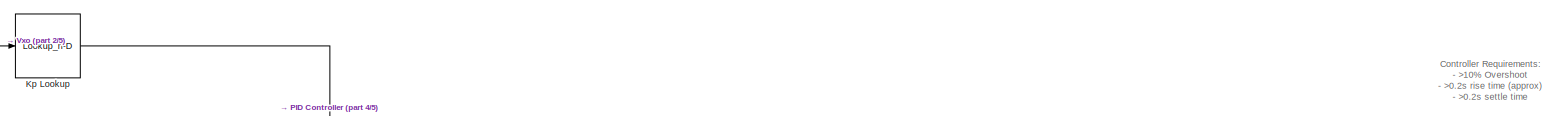
[diagram: root canvas - part 1/5, top center region]
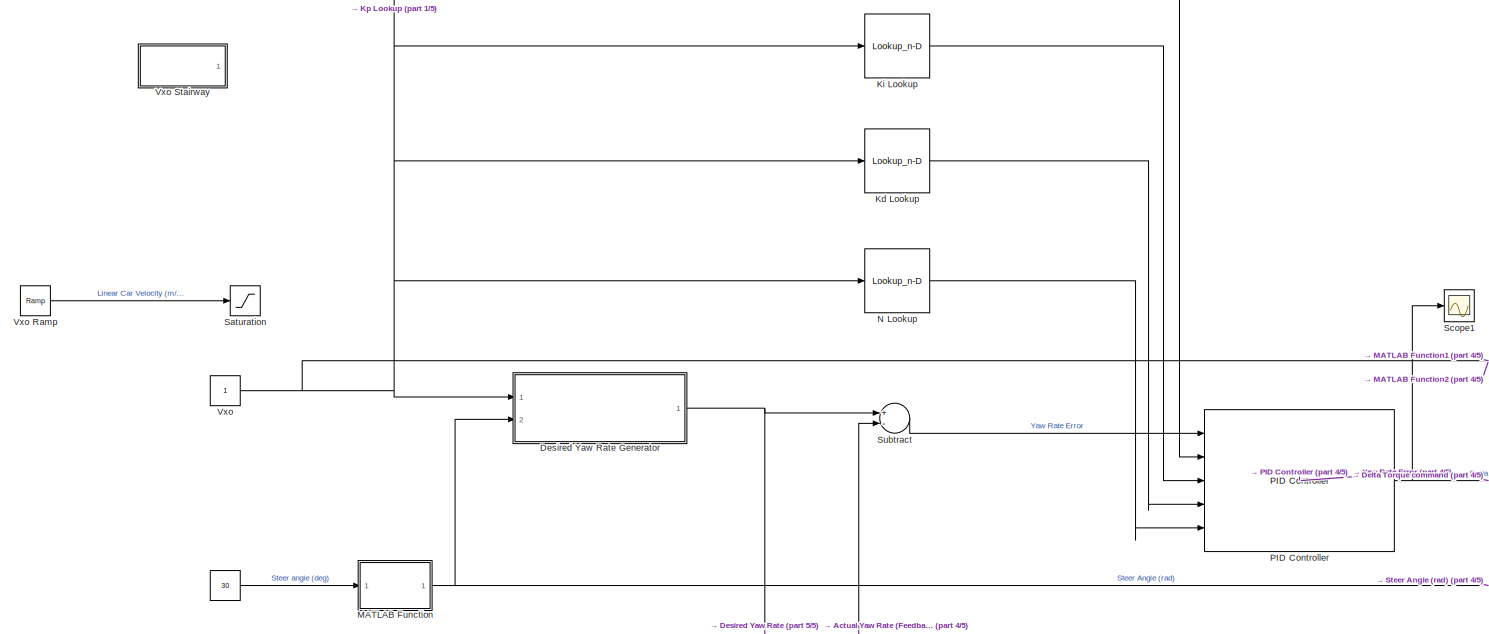
[diagram: root canvas - part 2/5, top left region]
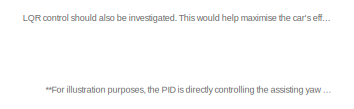
[diagram: root canvas - part 3/5, top right region]
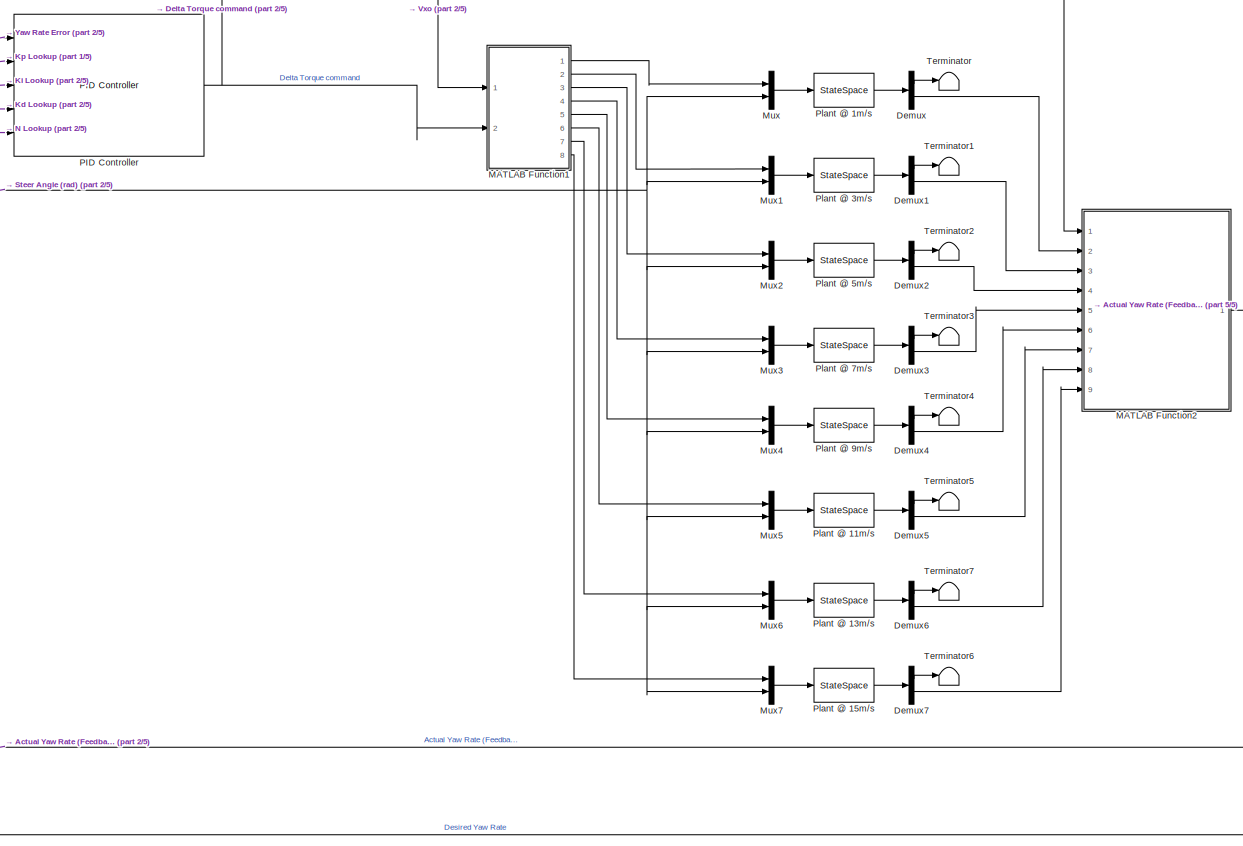
[diagram: root canvas - part 4/5, bottom center region]
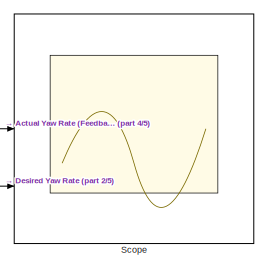
[diagram: root canvas - part 5/5, middle right region]
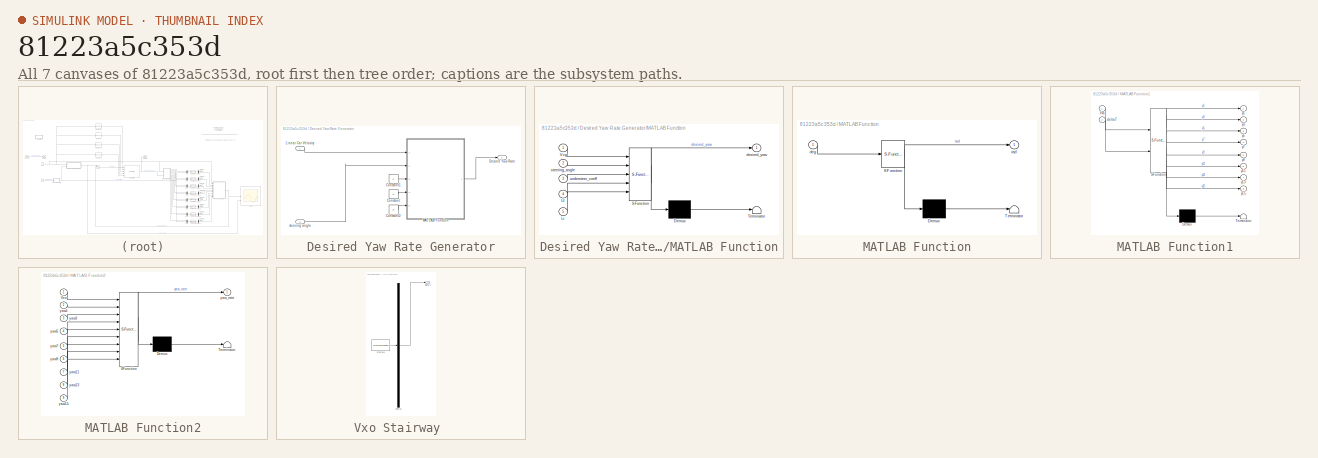
[diagram: thumbnail index - all 7 canvases of the model, root first then tree order]
MODEL slx_81223a5c353d
KIND model
CONFIG AbsTol = auto
CONFIG EnableMultiTasking = off
CONFIG FixedStep = auto
CONFIG MaxStep = auto
CONFIG MinStep = auto
CONFIG RelTol = 1e-3
CONFIG SampleTimeConstraint = Unconstrained
CONFIG Solver = VariableStepAuto
CONFIG SolverName = VariableStepAuto
CONFIG StartTime = 0.0
CONFIG StopTime = 40
BLOCK [Constant]  
  Value = 30
BLOCK [Demux] Demux
  DisplayOption = bar
  Outputs = 2
  Ports = [1, 2]
BLOCK [Demux] Demux1
  DisplayOption = bar
  Outputs = 2
  Ports = [1, 2]
BLOCK [Demux] Demux2
  DisplayOption = bar
  Outputs = 2
  Ports = [1, 2]
BLOCK [Demux] Demux3
  DisplayOption = bar
  Outputs = 2
  Ports = [1, 2]
BLOCK [Demux] Demux4
  DisplayOption = bar
  Outputs = 2
  Ports = [1, 2]
BLOCK [Demux] Demux5
  DisplayOption = bar
  Outputs = 2
  Ports = [1, 2]
BLOCK [Demux] Demux6
  DisplayOption = bar
  Outputs = 2
  Ports = [1, 2]
BLOCK [Demux] Demux7
  DisplayOption = bar
  Outputs = 2
  Ports = [1, 2]
BLOCK [SubSystem] Desired Yaw Rate Generator
  Ports = [2, 1]
  RequestExecContextInheritance = off
BLOCK [Constant] Desired Yaw Rate Generator/Constant
  Value = Lf
BLOCK [Constant] Desired Yaw Rate Generator/Constant1
  Value = 0
BLOCK [Constant] Desired Yaw Rate Generator/Constant2
  Value = Lr
BLOCK [Outport] Desired Yaw Rate Generator/Desired Yaw Rate
  IconDisplay = Port number
BLOCK [Inport] Desired Yaw Rate Generator/Linear Car Velocity
  IconDisplay = Port number
BLOCK [SubSystem] Desired Yaw Rate Generator/MATLAB Function
  ErrorFcn = Stateflow.Translate.translate
  PermitHierarchicalResolution = ExplicitOnly
  Ports = [5, 1]
  RequestExecContextInheritance = off
  SFBlockType = MATLAB Function
  TreatAsAtomicUnit = on
BLOCK [Demux] Desired Yaw Rate Generator/MATLAB Function/ Demux 
  Outputs = 1
  Ports = [1, 1]
BLOCK [S-Function] Desired Yaw Rate Generator/MATLAB Function/ SFunction 
  EnableBusSupport = on
  FunctionName = sf_sfun
  PortCounts = [5 2]
  Ports = [5, 2]
  SFcnIsStateOwnerBlock = off
  SFunctionDeploymentMode = off
  Tag = Stateflow S-Function linear_model 2
BLOCK [Terminator] Desired Yaw Rate Generator/MATLAB Function/ Terminator 
BLOCK [Inport] Desired Yaw Rate Generator/MATLAB Function/Lf
  IconDisplay = Port number
  Port = 4
BLOCK [Inport] Desired Yaw Rate Generator/MATLAB Function/Lr
  IconDisplay = Port number
  Port = 5
BLOCK [Inport] Desired Yaw Rate Generator/MATLAB Function/Vcg
  IconDisplay = Port number
BLOCK [Outport] Desired Yaw Rate Generator/MATLAB Function/desired_yaw
  IconDisplay = Port number
BLOCK [Inport] Desired Yaw Rate Generator/MATLAB Function/steering_angle
  IconDisplay = Port number
  Port = 2
BLOCK [Inport] Desired Yaw Rate Generator/MATLAB Function/understeer_coeff
  IconDisplay = Port number
  Port = 3
BLOCK [Inport] Desired Yaw Rate Generator/steering angle
  IconDisplay = Port number
  Port = 2
BLOCK [Lookup_n-D] Kd Lookup
  BreakpointsForDimension1 = [1,3,5,7,9,11,13,15]
  InternalRulePriority = Speed
  NumberOfTableDimensions = 1
  Ports = [1, 1]
  RndMeth = Simplest
  Table = [0,0,0,0,0,-0.40505,-0.50277,-1.0544]
BLOCK [Lookup_n-D] Ki Lookup
  BreakpointsForDimension1 = [1,3,5,7,9,11,13,15]
  InternalRulePriority = Speed
  NumberOfTableDimensions = 1
  Ports = [1, 1]
  RndMeth = Simplest
  Table = [37865.65,10454.7184,5331.6587,8450.1199,7889.3391,7361.3561,6813.2147,6310.914]
BLOCK [Lookup_n-D] Kp Lookup
  BreakpointsForDimension1 = [1,3,5,7,9,11,13,15]
  InternalRulePriority = Speed
  NumberOfTableDimensions = 1
  Ports = [1, 1]
  RndMeth = Simplest
  Table = [0,0,0,127.0119,171.5424,208.4617,225.764,251.3245]
BLOCK [SubSystem] MATLAB Function
  ErrorFcn = Stateflow.Translate.translate
  PermitHierarchicalResolution = ExplicitOnly
  Ports = [1, 1]
  RequestExecContextInheritance = off
  SFBlockType = MATLAB Function
  TreatAsAtomicUnit = on
BLOCK [Demux] MATLAB Function/ Demux 
  Outputs = 1
  Ports = [1, 1]
BLOCK [S-Function] MATLAB Function/ SFunction 
  EnableBusSupport = on
  FunctionName = sf_sfun
  PortCounts = [1 2]
  Ports = [1, 2]
  SFcnIsStateOwnerBlock = off
  SFunctionDeploymentMode = off
  Tag = Stateflow S-Function linear_model 1
BLOCK [Terminator] MATLAB Function/ Terminator 
BLOCK [Inport] MATLAB Function/deg
  IconDisplay = Port number
BLOCK [Outport] MATLAB Function/rad
  IconDisplay = Port number
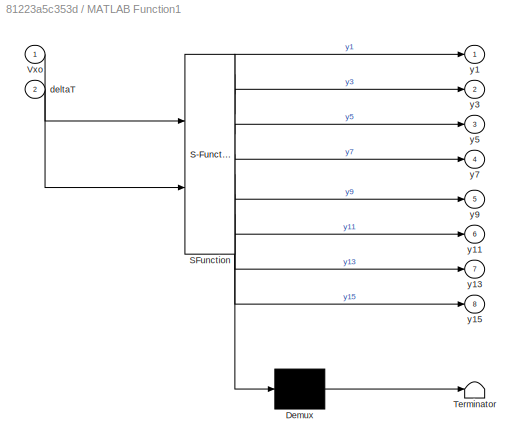
BLOCK [SubSystem] MATLAB Function1
  ErrorFcn = Stateflow.Translate.translate
  PermitHierarchicalResolution = ExplicitOnly
  Ports = [2, 8]
  RequestExecContextInheritance = off
  SFBlockType = MATLAB Function
  TreatAsAtomicUnit = on
BLOCK [Demux] MATLAB Function1/ Demux 
  Outputs = 1
  Ports = [1, 1]
BLOCK [S-Function] MATLAB Function1/ SFunction 
  EnableBusSupport = on
  FunctionName = sf_sfun
  PortCounts = [2 9]
  Ports = [2, 9]
  SFcnIsStateOwnerBlock = off
  SFunctionDeploymentMode = off
  Tag = Stateflow S-Function linear_model 3
BLOCK [Terminator] MATLAB Function1/ Terminator 
BLOCK [Inport] MATLAB Function1/Vxo
  IconDisplay = Port number
BLOCK [Inport] MATLAB Function1/deltaT
  IconDisplay = Port number
  Port = 2
BLOCK [Outport] MATLAB Function1/y1
  IconDisplay = Port number
BLOCK [Outport] MATLAB Function1/y11
  IconDisplay = Port number
  Port = 6
BLOCK [Outport] MATLAB Function1/y13
  IconDisplay = Port number
  Port = 7
BLOCK [Outport] MATLAB Function1/y15
  IconDisplay = Port number
  Port = 8
BLOCK [Outport] MATLAB Function1/y3
  IconDisplay = Port number
  Port = 2
BLOCK [Outport] MATLAB Function1/y5
  IconDisplay = Port number
  Port = 3
BLOCK [Outport] MATLAB Function1/y7
  IconDisplay = Port number
  Port = 4
BLOCK [Outport] MATLAB Function1/y9
  IconDisplay = Port number
  Port = 5
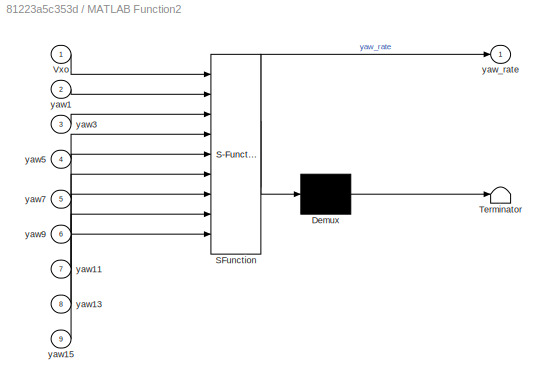
BLOCK [SubSystem] MATLAB Function2
  ErrorFcn = Stateflow.Translate.translate
  PermitHierarchicalResolution = ExplicitOnly
  Ports = [9, 1]
  RequestExecContextInheritance = off
  SFBlockType = MATLAB Function
  TreatAsAtomicUnit = on
BLOCK [Demux] MATLAB Function2/ Demux 
  Outputs = 1
  Ports = [1, 1]
BLOCK [S-Function] MATLAB Function2/ SFunction 
  EnableBusSupport = on
  FunctionName = sf_sfun
  PortCounts = [9 2]
  Ports = [9, 2]
  SFcnIsStateOwnerBlock = off
  SFunctionDeploymentMode = off
  Tag = Stateflow S-Function linear_model 4
BLOCK [Terminator] MATLAB Function2/ Terminator 
BLOCK [Inport] MATLAB Function2/Vxo
  IconDisplay = Port number
BLOCK [Inport] MATLAB Function2/yaw1
  IconDisplay = Port number
  Port = 2
BLOCK [Inport] MATLAB Function2/yaw11
  IconDisplay = Port number
  Port = 7
BLOCK [Inport] MATLAB Function2/yaw13
  IconDisplay = Port number
  Port = 8
BLOCK [Inport] MATLAB Function2/yaw15
  IconDisplay = Port number
  Port = 9
BLOCK [Inport] MATLAB Function2/yaw3
  IconDisplay = Port number
  Port = 3
BLOCK [Inport] MATLAB Function2/yaw5
  IconDisplay = Port number
  Port = 4
BLOCK [Inport] MATLAB Function2/yaw7
  IconDisplay = Port number
  Port = 5
BLOCK [Inport] MATLAB Function2/yaw9
  IconDisplay = Port number
  Port = 6
BLOCK [Outport] MATLAB Function2/yaw_rate
  IconDisplay = Port number
BLOCK [Mux] Mux
  DisplayOption = bar
  Inputs = 2
  Ports = [2, 1]
BLOCK [Mux] Mux1
  DisplayOption = bar
  Inputs = 2
  Ports = [2, 1]
BLOCK [Mux] Mux2
  DisplayOption = bar
  Inputs = 2
  Ports = [2, 1]
BLOCK [Mux] Mux3
  DisplayOption = bar
  Inputs = 2
  Ports = [2, 1]
BLOCK [Mux] Mux4
  DisplayOption = bar
  Inputs = 2
  Ports = [2, 1]
BLOCK [Mux] Mux5
  DisplayOption = bar
  Inputs = 2
  Ports = [2, 1]
BLOCK [Mux] Mux6
  DisplayOption = bar
  Inputs = 2
  Ports = [2, 1]
BLOCK [Mux] Mux7
  DisplayOption = bar
  Inputs = 2
  Ports = [2, 1]
BLOCK [Lookup_n-D] N Lookup
  BreakpointsForDimension1 = [1,3,5,7,9,11,13,15]
  InternalRulePriority = Speed
  NumberOfTableDimensions = 1
  Ports = [1, 1]
  RndMeth = Simplest
  Table = [0,0,0,0,0,31.6952,27.1972,27.1927]
BLOCK [Reference] PID Controller   REF=simulink/Continuous/PID Controller
  Ports = [5, 1]
  SourceBlock = simulink/Continuous/PID Controller
  SourceProductBaseCode = SL
  SourceProductName = Simulink
  SourceType = PID 1dof
BLOCK [StateSpace] Plant @ 11m//s
  A = plants(:,:,6).A
  B = plants(:,:,6).B
  C = plants(:,:,6).C
  ContinuousStateAttributes = {'V_lat','yaw_rate'}
  D = plants(:,:,6).D
  InitialCondition = 0
  Ports = [1, 1]
BLOCK [StateSpace] Plant @ 13m//s
  A = plants(:,:,7).A
  B = plants(:,:,7).B
  C = plants(:,:,7).C
  ContinuousStateAttributes = {'V_lat','yaw_rate'}
  D = plants(:,:,7).D
  InitialCondition = 0
  Ports = [1, 1]
BLOCK [StateSpace] Plant @ 15m//s
  A = plants(:,:,8).A
  B = plants(:,:,8).B
  C = plants(:,:,8).C
  ContinuousStateAttributes = {'V_lat','yaw_rate'}
  D = plants(:,:,8).D
  InitialCondition = 0
  Ports = [1, 1]
BLOCK [StateSpace] Plant @ 1m//s
  A = plants(:,:,1).A
  B = plants(:,:,1).B
  C = plants(:,:,1).C
  ContinuousStateAttributes = {'V_lat','yaw_rate'}
  D = plants(:,:,1).D
  InitialCondition = 0
  Ports = [1, 1]
BLOCK [StateSpace] Plant @ 3m//s
  A = plants(:,:,2).A
  B = plants(:,:,2).B
  C = plants(:,:,2).C
  ContinuousStateAttributes = {'V_lat','yaw_rate'}
  D = plants(:,:,2).D
  InitialCondition = 0
  Ports = [1, 1]
BLOCK [StateSpace] Plant @ 5m//s
  A = plants(:,:,3).A
  B = plants(:,:,3).B
  C = plants(:,:,3).C
  ContinuousStateAttributes = {'V_lat','yaw_rate'}
  D = plants(:,:,3).D
  InitialCondition = 0
  Ports = [1, 1]
BLOCK [StateSpace] Plant @ 7m//s
  A = plants(:,:,4).A
  B = plants(:,:,4).B
  C = plants(:,:,4).C
  ContinuousStateAttributes = {'V_lat','yaw_rate'}
  D = plants(:,:,4).D
  InitialCondition = 0
  Ports = [1, 1]
BLOCK [StateSpace] Plant @ 9m//s
  A = plants(:,:,5).A
  B = plants(:,:,5).B
  C = plants(:,:,5).C
  ContinuousStateAttributes = {'V_lat','yaw_rate'}
  D = plants(:,:,5).D
  InitialCondition = 0
  Ports = [1, 1]
BLOCK [Saturate] Saturation
  InputPortMap = u0
  LowerLimit = 0
  Ports = [1, 1]
  UpperLimit = 16
BLOCK [Scope] Scope
  Floating = off
  NumInputPorts = 3
  Ports = [3]
  ScopeSpecificationString = Simulink.scopes.TimeScopeBlockCfg('CurrentConfiguration', extmgr.ConfigurationSet(extmgr.Configuration('Core','General UI',true),extmgr.Configuration('Core','Source UI',true),extmgr.Configuration('Sources','WiredSimulink',true),extmgr.Configuration('Visuals','Time Domain',true,'SerializedDisplays',{struct('MinYLimReal','-0.22667','MaxYLimReal','2.04','YLabelReal','','MinYLimMag','0.00000','MaxYLim...<+1400ch>
BLOCK [Scope] Scope1
  Floating = off
  NumInputPorts = 1
  Ports = [1]
  ScopeSpecificationString = Simulink.scopes.TimeScopeBlockCfg('CurrentConfiguration', extmgr.ConfigurationSet(extmgr.Configuration('Core','General UI',true),extmgr.Configuration('Core','Source UI',true),extmgr.Configuration('Sources','WiredSimulink',true,'DataLoggingVariableName','ScopeData1'),extmgr.Configuration('Visuals','Time Domain',true,'SerializedDisplays',{struct('MinYLimReal','-125.00000','MaxYLimReal','1125.00000',...<+1430ch>
BLOCK [Sum] Subtract
  InputSameDT = off
  Inputs = +-
  OutDataTypeStr = Inherit: Inherit via internal rule
  Ports = [2, 1]
  SaturateOnIntegerOverflow = off
BLOCK [Terminator] Terminator
BLOCK [Terminator] Terminator1
BLOCK [Terminator] Terminator2
BLOCK [Terminator] Terminator3
BLOCK [Terminator] Terminator4
BLOCK [Terminator] Terminator5
BLOCK [Terminator] Terminator6
BLOCK [Terminator] Terminator7
BLOCK [Constant] Vxo
BLOCK [Reference] Vxo Ramp  REF=simulink/Sources/Ramp
  Ports = [0, 1]
  SourceBlock = simulink/Sources/Ramp
  SourceProductBaseCode = SL
  SourceProductName = Simulink
  SourceType = Ramp
BLOCK [SubSystem] Vxo Stairway 
  ClipboardFcn = sigbuilder_block('clipboard');
  CloseFcn = sigbuilder_block('close');
  ContinueFcn = sigbuilder_block('continue');
  CopyFcn = sigbuilder_block('copy');
  DeleteFcn = sigbuilder_block('delete');
  LoadFcn = sigbuilder_block('load');
  MaskHideContents = on
  ModelCloseFcn = sigbuilder_block('modelClose');
  NameChangeFcn = sigbuilder_block('namechange');
  OpenFcn = sigbuilder_block('open',[5.4 30 1141.2 522.6 ]);
  PauseFcn = sigbuilder_block('pause');
  Ports = [0, 1]
  PreSaveFcn = sigbuilder_block('preSave');
  RequestExecContextInheritance = off
  StartFcn = sigbuilder_block('start');
  StopFcn = sigbuilder_block('stop');
  Tag = STV Subsys
BLOCK [Demux] Vxo Stairway /Demux
  Outputs = 1
  Ports = [1, 1]
  Tag = STV Demux
BLOCK [FromWorkspace] Vxo Stairway /FromWs
  SampleTime = 0
  Tag = STV FromWs
  VariableName = tuvar
  ZeroCross = on
BLOCK [Outport] Vxo Stairway /Signal 1
  IconDisplay = Port number
  Tag = STV Outport
ANNOTATION (root): **For illustration purposes, the PID is directly controlling the assisting yaw moment that helps the car corner. In reality, it would control the torques to the wheels that would create this assisting moment. We would need to figure out a way of doing this that's extendable to an AWD car.
ANNOTATION (root): Controller Requirements: - >10% Overshoot - >0.2s rise time (approx) - >0.2s settle time
ANNOTATION (root): LQR control should also be investigated. This would help maximise the car's efficiency by making compromises based on power drawn from the accumulator during a turn as a basic example.
LINE  :1 -> MATLAB Function:1
LINE Demux1:1 -> Terminator1:1
LINE Demux1:2 -> MATLAB Function2:3
LINE Demux2:1 -> Terminator2:1
LINE Demux2:2 -> MATLAB Function2:4
LINE Demux3:1 -> Terminator3:1
LINE Demux3:2 -> MATLAB Function2:5
LINE Demux4:1 -> Terminator4:1
LINE Demux4:2 -> MATLAB Function2:6
LINE Demux5:1 -> Terminator5:1
LINE Demux5:2 -> MATLAB Function2:7
LINE Demux6:1 -> Terminator7:1
LINE Demux6:2 -> MATLAB Function2:8
LINE Demux7:1 -> Terminator6:1
LINE Demux7:2 -> MATLAB Function2:9
LINE Demux:1 -> Terminator:1
LINE Demux:2 -> MATLAB Function2:2
LINE Desired Yaw Rate Generator/Constant1:1 -> Desired Yaw Rate Generator/MATLAB Function:3
LINE Desired Yaw Rate Generator/Constant2:1 -> Desired Yaw Rate Generator/MATLAB Function:5
LINE Desired Yaw Rate Generator/Constant:1 -> Desired Yaw Rate Generator/MATLAB Function:4
LINE Desired Yaw Rate Generator/Linear Car Velocity:1 -> Desired Yaw Rate Generator/MATLAB Function:1
LINE Desired Yaw Rate Generator/MATLAB Function:1 -> Desired Yaw Rate Generator/Desired Yaw Rate:1
LINE Desired Yaw Rate Generator/steering angle:1 -> Desired Yaw Rate Generator/MATLAB Function:2
NET Desired Yaw Rate Generator:1 -> Scope:3, Subtract:1
LINE Kd Lookup:1 -> PID Controller :4
LINE Ki Lookup:1 -> PID Controller :3
LINE Kp Lookup:1 -> PID Controller :2
LINE MATLAB Function1:1 -> Mux:1
LINE MATLAB Function1:2 -> Mux1:1
LINE MATLAB Function1:3 -> Mux2:1
LINE MATLAB Function1:4 -> Mux3:1
LINE MATLAB Function1:5 -> Mux4:1
LINE MATLAB Function1:6 -> Mux5:1
LINE MATLAB Function1:7 -> Mux6:1
LINE MATLAB Function1:8 -> Mux7:1
NET MATLAB Function2:1 -> Scope:2, Subtract:2
NET MATLAB Function:1 -> Desired Yaw Rate Generator:2, Mux1:2, Mux2:2, Mux3:2, Mux4:2, Mux5:2, Mux6:2, Mux7:2, Mux:2
LINE Mux1:1 -> Plant @ 3m//s:1
LINE Mux2:1 -> Plant @ 5m//s:1
LINE Mux3:1 -> Plant @ 7m//s:1
LINE Mux4:1 -> Plant @ 9m//s:1
LINE Mux5:1 -> Plant @ 11m//s:1
LINE Mux6:1 -> Plant @ 13m//s:1
LINE Mux7:1 -> Plant @ 15m//s:1
LINE Mux:1 -> Plant @ 1m//s:1
LINE N Lookup:1 -> PID Controller :5
NET PID Controller :1 -> MATLAB Function1:2, Scope1:1
LINE Plant @ 11m//s:1 -> Demux5:1
LINE Plant @ 13m//s:1 -> Demux6:1
LINE Plant @ 15m//s:1 -> Demux7:1
LINE Plant @ 1m//s:1 -> Demux:1
LINE Plant @ 3m//s:1 -> Demux1:1
LINE Plant @ 5m//s:1 -> Demux2:1
LINE Plant @ 7m//s:1 -> Demux3:1
LINE Plant @ 9m//s:1 -> Demux4:1
LINE Subtract:1 -> PID Controller :1
LINE Vxo Ramp:1 -> Saturation:1
NET Vxo:1 -> Desired Yaw Rate Generator:1, Kd Lookup:1, Ki Lookup:1, Kp Lookup:1, MATLAB Function1:1, MATLAB Function2:1, N Lookup:1
note: NET lines group one-source signal fan-out (src -> all destinations, sorted); 1:1 wires keep LINE
CHART MATLAB Function states=1 transitions=1
  STATE_LABEL 'eML_blk_kernel()'
  STATE_LABEL 'SCRIPT:\nfunction rad = deg2rad(deg)\n\nrad = (deg*pi)/180;\n'
CHART Desired Yaw Rate Generator/MATLAB Function states=1 transitions=1
  STATE_LABEL 'eML_blk_kernel()'
  STATE_LABEL 'SCRIPT:\nfunction desired_yaw = desiredYaw(Vcg , steering_angle, understeer_coeff, Lf, Lr)\ndesired_yaw = 0;\ndesired_yaw = Vcg*steering_angle/((Lf*Lr) + understeer_coeff*Vcg^2);\n'
CHART MATLAB Function1 states=1 transitions=1
  STATE_LABEL 'eML_blk_kernel()'
  STATE_LABEL 'SCRIPT:\nfunction [y1,y3,y5,y7,y9,y11,y13,y15]= fcn(Vxo, deltaT)\nif (0 <= Vxo)&&(Vxo < 2)\n    y1 = deltaT;\n    y3 = 0;\n    y5 = 0;\n    y7 = 0;\n    y9 = 0;\n    y11 = 0;\n    y13 = 0;\n    y15 = 0;\nelseif (2 <= Vxo)&&(Vxo < 4)\n    y1 = 0;\n    y3 = deltaT;\n    y5 = 0;\n    y7 = 0;\n    y9 = 0;\n    y11 = 0;\n    y13 = 0;\n    y15 = 0;\nelseif (4 <= Vxo)&&(Vxo < 6)\n    y1 = 0;\n    y3 = 0;\n    y5 = deltaT;\n    ...<+837ch>'
CHART MATLAB Function2 states=1 transitions=1
  STATE_LABEL 'eML_blk_kernel()'
  STATE_LABEL 'SCRIPT:\nfunction yaw_rate  = fcn(Vxo,yaw1,yaw3,yaw5,yaw7,yaw9,yaw11,yaw13,yaw15)\nif (0 <= Vxo)&&(Vxo < 2)\n    yaw_rate = yaw1;\nelseif (2 <= Vxo)&&(Vxo < 4)\n    yaw_rate = yaw3;\nelseif (4 <= Vxo)&&(Vxo < 6)\n    yaw_rate = yaw5;\nelseif (6 <= Vxo)&&(Vxo < 8)\n    yaw_rate = yaw7;\nelseif (8 <= Vxo)&&(Vxo < 10)\n    yaw_rate = yaw9;\nelseif (10 <= Vxo)&&(Vxo < 12)\n    yaw_rate = yaw11;\nelseif (12 <= Vxo)&...<+105ch>'
